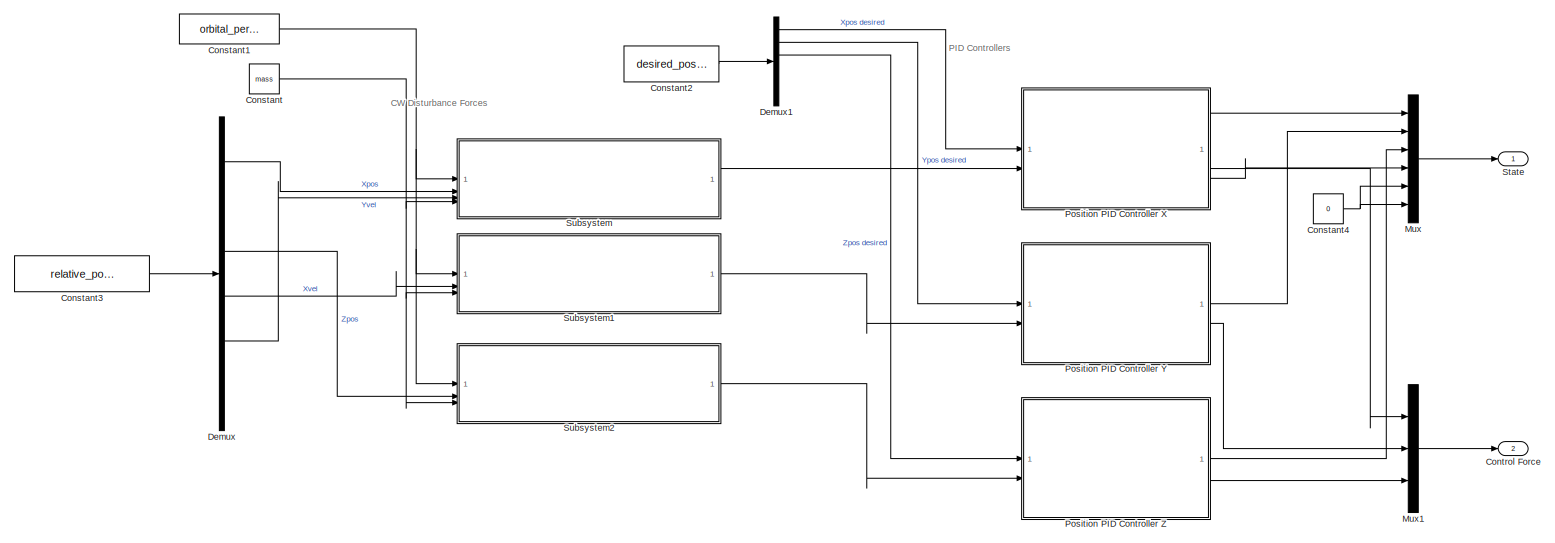
[diagram: root canvas - part 1/1, most of the canvas]
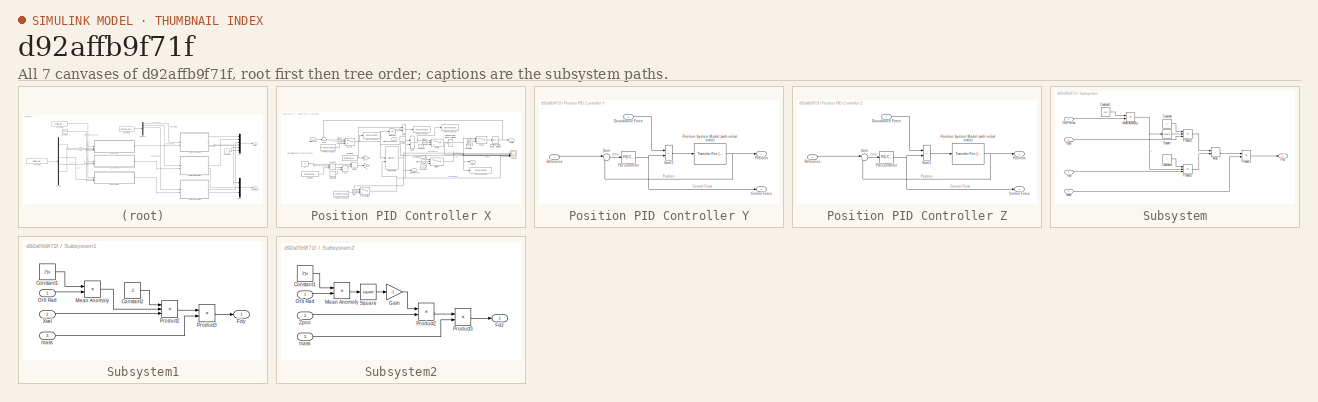
[diagram: thumbnail index - all 7 canvases of the model, root first then tree order]
MODEL slx_d92affb9f71f
KIND model
CONFIG AbsTol = auto
CONFIG EnableMultiTasking = off
CONFIG FixedStep = Tstep
CONFIG MaxStep = auto
CONFIG MinStep = auto
CONFIG RelTol = 1e-3
CONFIG SampleTimeConstraint = Unconstrained
CONFIG SolverName = ode4
CONFIG StartTime = 0.0
CONFIG StopTime = Tfinal
WORKSPACE source: mxarray member
WORKSPACE m: Simulink.Parameter (value not decoded)
BLOCK [Constant] Constant
  Value = mass
BLOCK [Constant] Constant1
  Value = orbital_period
BLOCK [Constant] Constant2
  Value = desired_position
BLOCK [Constant] Constant3
  Value = relative_position
BLOCK [Constant] Constant4
  Value = 0
BLOCK [Outport] Control Force
  Port = 2
  SignalName = Control Force
BLOCK [Demux] Demux
  Outputs = 6
BLOCK [Demux] Demux1
  Outputs = 6
BLOCK [Mux] Mux
  DisplayOption = bar
  Inputs = 6
BLOCK [Mux] Mux1
  DisplayOption = bar
  Inputs = 3
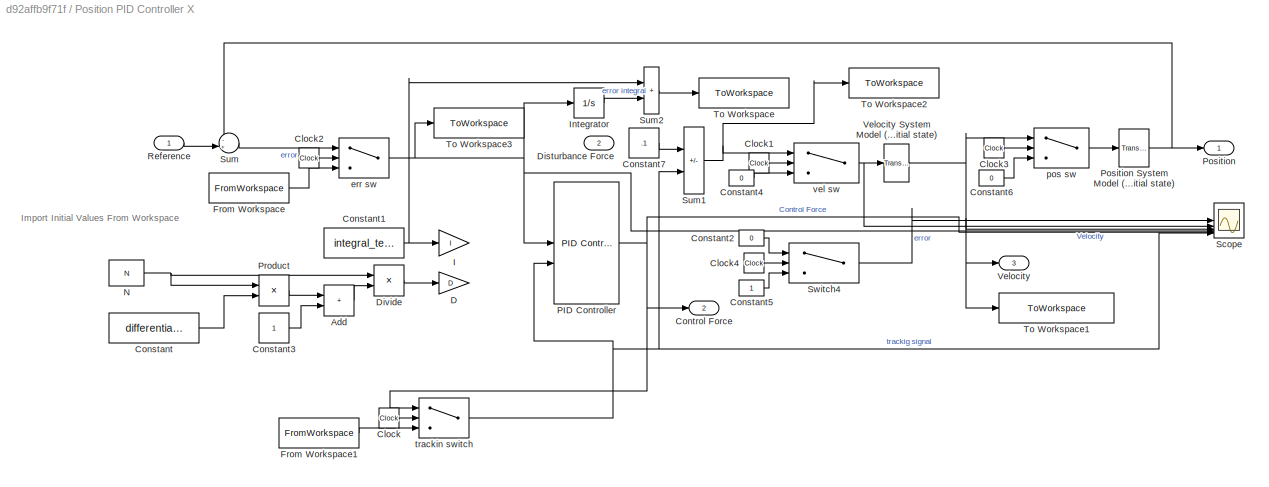
BLOCK [SubSystem] Position PID Controller X
BLOCK [Sum] Position PID Controller X/Add
  IconShape = rectangular
BLOCK [Clock] Position PID Controller X/Clock
BLOCK [Clock] Position PID Controller X/Clock1
BLOCK [Clock] Position PID Controller X/Clock2
BLOCK [Clock] Position PID Controller X/Clock3
BLOCK [Clock] Position PID Controller X/Clock4
BLOCK [Constant] Position PID Controller X/Constant
  Value = differential_term
BLOCK [Constant] Position PID Controller X/Constant1
  Value = integral_term
BLOCK [Constant] Position PID Controller X/Constant2
  Value = 0
BLOCK [Constant] Position PID Controller X/Constant3
BLOCK [Constant] Position PID Controller X/Constant4
  Value = 0
BLOCK [Constant] Position PID Controller X/Constant5
BLOCK [Constant] Position PID Controller X/Constant6
  Value = 0
BLOCK [Constant] Position PID Controller X/Constant7
  Value = .1
BLOCK [Outport] Position PID Controller X/Control Force
  Port = 2
BLOCK [Gain] Position PID Controller X/D
  Gain = D
BLOCK [Inport] Position PID Controller X/Disturbance Force
  Port = 2
BLOCK [Product] Position PID Controller X/Divide
  Inputs = */
BLOCK [FromWorkspace] Position PID Controller X/From Workspace
  VariableName = error_timeseries
BLOCK [FromWorkspace] Position PID Controller X/From Workspace1
  VariableName = plant_input
BLOCK [Gain] Position PID Controller X/I
  Gain = I
BLOCK [Integrator] Position PID Controller X/Integrator
BLOCK [Constant] Position PID Controller X/N
  Value = N
BLOCK [Reference] Position PID Controller X/PID Controller  REF=slpidlib/PID Controller
  SourceBlock = slpidlib/PID Controller
  SourceType = PID 1dof
BLOCK [Outport] Position PID Controller X/Position
BLOCK [Reference] Position PID Controller X/Position System Model (with initial state)  REF=simulink_extras/Additional
Linear/Transfer Fcn
(with initial states)
  SourceBlock = simulink_extras/Additional\nLinear/Transfer Fcn\n(with initial states)
  SourceType = Transfer Function with Initial States
BLOCK [Product] Position PID Controller X/Product
BLOCK [Inport] Position PID Controller X/Reference
BLOCK [Scope] Position PID Controller X/Scope
  Floating = off
  NumInputPorts = 6
  ScopeSpecificationString = Simulink.scopes.TimeScopeBlockCfg('CurrentConfiguration', extmgr.ConfigurationSet(extmgr.Configuration('Core','General UI',true),extmgr.Configuration('Core','Source UI',true),extmgr.Configuration('Sources','WiredSimulink',true),extmgr.Configuration('Visuals','Time Domain',true,'SerializedDisplays',{struct('MinYLimReal','-22.09','MaxYLimReal','12.6788','YLabelReal','','MinYLimMag','0.00000','MaxYLi...<+1566ch>
BLOCK [Sum] Position PID Controller X/Sum
  Inputs = -+|
BLOCK [Sum] Position PID Controller X/Sum1
  IconShape = rectangular
  Inputs = -+
BLOCK [Sum] Position PID Controller X/Sum2
  IconShape = rectangular
BLOCK [Switch] Position PID Controller X/Switch4
  InputSameDT = off
  SaturateOnIntegerOverflow = off
  Threshold = TControlStart
BLOCK [ToWorkspace] Position PID Controller X/To Workspace
  FixptAsFi = on
  MaxDataPoints = inf
  SampleTime = -1
  VariableName = PID_I_term
BLOCK [ToWorkspace] Position PID Controller X/To Workspace1
  FixptAsFi = on
  MaxDataPoints = inf
  SampleTime = -1
  VariableName = PID_D_term
BLOCK [ToWorkspace] Position PID Controller X/To Workspace2
  FixptAsFi = on
  MaxDataPoints = inf
  SampleTime = -1
  SaveFormat = Timeseries
  VariableName = PlantInput
BLOCK [ToWorkspace] Position PID Controller X/To Workspace3
  FixptAsFi = on
  MaxDataPoints = inf
  SampleTime = -1
  SaveFormat = Timeseries
  VariableName = error
BLOCK [Outport] Position PID Controller X/Velocity
  Port = 3
BLOCK [Reference] Position PID Controller X/Velocity System Model (with initial state)  REF=simulink_extras/Additional
Linear/Transfer Fcn
(with initial states)
  NameLocation = top
  SourceBlock = simulink_extras/Additional\nLinear/Transfer Fcn\n(with initial states)
  SourceType = Transfer Function with Initial States
BLOCK [Switch] Position PID Controller X/err sw
  Criteria = u2 > Threshold
  InputSameDT = off
  SaturateOnIntegerOverflow = off
  Threshold = TControlStart
BLOCK [Switch] Position PID Controller X/pos sw
  InputSameDT = off
  SaturateOnIntegerOverflow = off
  Threshold = TControlStart
BLOCK [Switch] Position PID Controller X/trackin switch
  Criteria = u2 > Threshold
  InputSameDT = off
  SaturateOnIntegerOverflow = off
  Threshold = TControlStart
BLOCK [Switch] Position PID Controller X/vel sw
  InputSameDT = off
  SaturateOnIntegerOverflow = off
  Threshold = TControlStart
BLOCK [SubSystem] Position PID Controller Y
BLOCK [Outport] Position PID Controller Y/Control Force
  Port = 2
BLOCK [Inport] Position PID Controller Y/Disturbance Force
  Port = 2
BLOCK [Reference] Position PID Controller Y/PID Controller  REF=slpidlib/PID Controller
  SourceBlock = slpidlib/PID Controller
  SourceType = PID 1dof
BLOCK [Outport] Position PID Controller Y/Position
BLOCK [Reference] Position PID Controller Y/Position System Model (with initial state)  REF=simulink_extras/Additional
Linear/Transfer Fcn
(with initial states)
  SourceBlock = simulink_extras/Additional\nLinear/Transfer Fcn\n(with initial states)
  SourceType = Transfer Function with Initial States
BLOCK [Inport] Position PID Controller Y/Reference
BLOCK [Sum] Position PID Controller Y/Sum
  Inputs = |+-
BLOCK [Sum] Position PID Controller Y/Sum1
  IconShape = rectangular
  Inputs = -+
BLOCK [SubSystem] Position PID Controller Z
BLOCK [Outport] Position PID Controller Z/Control Force
  Port = 2
BLOCK [Inport] Position PID Controller Z/Disturbance Force
  Port = 2
BLOCK [Reference] Position PID Controller Z/PID Controller  REF=slpidlib/PID Controller
  SourceBlock = slpidlib/PID Controller
  SourceType = PID 1dof
BLOCK [Outport] Position PID Controller Z/Position
BLOCK [Reference] Position PID Controller Z/Position System Model (with initial state)  REF=simulink_extras/Additional
Linear/Transfer Fcn
(with initial states)
  SourceBlock = simulink_extras/Additional\nLinear/Transfer Fcn\n(with initial states)
  SourceType = Transfer Function with Initial States
BLOCK [Inport] Position PID Controller Z/Reference
BLOCK [Sum] Position PID Controller Z/Sum
  Inputs = |+-
BLOCK [Sum] Position PID Controller Z/Sum1
  IconShape = rectangular
  Inputs = -+
BLOCK [Outport] State
  SignalName = State
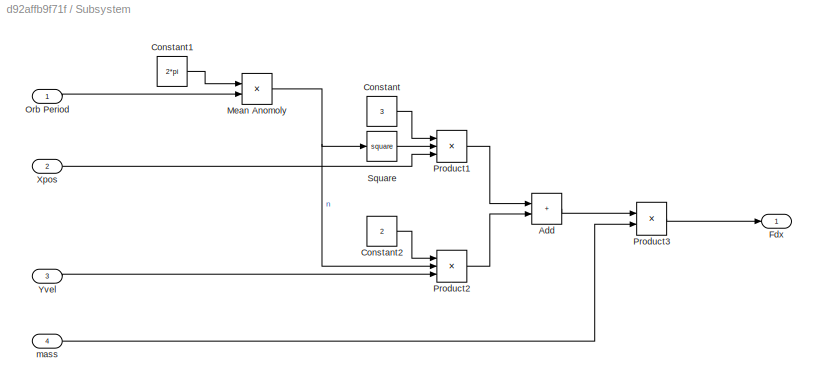
BLOCK [SubSystem] Subsystem
BLOCK [Sum] Subsystem/Add
  IconShape = rectangular
BLOCK [Constant] Subsystem/Constant
  Value = 3
BLOCK [Constant] Subsystem/Constant1
  Value = 2*pi
BLOCK [Constant] Subsystem/Constant2
  Value = 2
BLOCK [Outport] Subsystem/Fdx
BLOCK [Product] Subsystem/Mean Anomoly
  Inputs = */
BLOCK [Inport] Subsystem/Orb Period
BLOCK [Product] Subsystem/Product1
  Inputs = 3
BLOCK [Product] Subsystem/Product2
  Inputs = 3
BLOCK [Product] Subsystem/Product3
BLOCK [Math] Subsystem/Square
  Operator = square
BLOCK [Inport] Subsystem/Xpos
  Port = 2
BLOCK [Inport] Subsystem/Yvel
  Port = 3
BLOCK [Inport] Subsystem/mass
  Port = 4
BLOCK [SubSystem] Subsystem1
BLOCK [Constant] Subsystem1/Constant1
  Value = 2*pi
BLOCK [Constant] Subsystem1/Constant2
  Value = -2
BLOCK [Outport] Subsystem1/Fdy
BLOCK [Product] Subsystem1/Mean Anomoly
  Inputs = */
BLOCK [Inport] Subsystem1/Orb Rad
BLOCK [Product] Subsystem1/Product2
  Inputs = 3
BLOCK [Product] Subsystem1/Product3
BLOCK [Inport] Subsystem1/Xvel
  Port = 2
BLOCK [Inport] Subsystem1/mass
  Port = 3
BLOCK [SubSystem] Subsystem2
BLOCK [Constant] Subsystem2/Constant1
  Value = 2*pi
BLOCK [Outport] Subsystem2/Fdz
BLOCK [Gain] Subsystem2/Gain
  Gain = -1
BLOCK [Product] Subsystem2/Mean Anomoly
  Inputs = */
BLOCK [Inport] Subsystem2/Orb Rad
BLOCK [Product] Subsystem2/Product2
BLOCK [Product] Subsystem2/Product3
BLOCK [Math] Subsystem2/Square
  Operator = square
BLOCK [Inport] Subsystem2/Zpos
  Port = 2
BLOCK [Inport] Subsystem2/mass
  Port = 3
ANNOTATION (root): CW Disturbance Forces
ANNOTATION (root): PID Controllers
ANNOTATION Position PID Controller X: Import Initial Values From Workspace
NET Constant1:1 -> Subsystem1:1, Subsystem2:1, Subsystem:1
LINE Constant2:1 -> Demux1:1
LINE Constant3:1 -> Demux:1
NET Constant4:1 -> Mux:5, Mux:6
NET Constant:1 -> Subsystem1:3, Subsystem2:3, Subsystem:4
LINE Demux1:1 -> Position PID Controller X:1
LINE Demux1:2 -> Position PID Controller Y:1
LINE Demux1:3 -> Position PID Controller Z:1
LINE Demux:1 -> Subsystem:2
LINE Demux:3 -> Subsystem2:2
LINE Demux:4 -> Subsystem1:2
LINE Demux:5 -> Subsystem:3
LINE Mux1:1 -> Control Force:1
LINE Mux:1 -> State:1
LINE Position PID Controller X/Add:1 -> Position PID Controller X/Divide:2
LINE Position PID Controller X/Clock1:1 -> Position PID Controller X/vel sw:2
LINE Position PID Controller X/Clock2:1 -> Position PID Controller X/err sw:2
LINE Position PID Controller X/Clock3:1 -> Position PID Controller X/pos sw:2
LINE Position PID Controller X/Clock4:1 -> Position PID Controller X/Switch4:2
LINE Position PID Controller X/Clock:1 -> Position PID Controller X/trackin switch:2
NET Position PID Controller X/Constant1:1 -> Position PID Controller X/I:1, Position PID Controller X/Sum2:1
LINE Position PID Controller X/Constant2:1 -> Position PID Controller X/Switch4:1
LINE Position PID Controller X/Constant3:1 -> Position PID Controller X/Add:2
LINE Position PID Controller X/Constant4:1 -> Position PID Controller X/vel sw:3
LINE Position PID Controller X/Constant5:1 -> Position PID Controller X/Switch4:3
LINE Position PID Controller X/Constant6:1 -> Position PID Controller X/pos sw:3
LINE Position PID Controller X/Constant7:1 -> Position PID Controller X/Sum1:1
LINE Position PID Controller X/Constant:1 -> Position PID Controller X/Product:2
LINE Position PID Controller X/Divide:1 -> Position PID Controller X/D:1
LINE Position PID Controller X/From Workspace1:1 -> Position PID Controller X/trackin switch:3
LINE Position PID Controller X/From Workspace:1 -> Position PID Controller X/err sw:3
LINE Position PID Controller X/Integrator:1 -> Position PID Controller X/Sum2:2
NET Position PID Controller X/N:1 -> Position PID Controller X/Divide:1, Position PID Controller X/Product:1
NET Position PID Controller X/PID Controller:1 -> Position PID Controller X/Control Force:1, Position PID Controller X/Scope:5, Position PID Controller X/trackin switch:1
NET Position PID Controller X/Position System Model (with initial state):1 -> Position PID Controller X/Position:1, Position PID Controller X/Sum:1
LINE Position PID Controller X/Product:1 -> Position PID Controller X/Add:1
LINE Position PID Controller X/Reference:1 -> Position PID Controller X/Sum:2
NET Position PID Controller X/Sum1:1 -> Position PID Controller X/To Workspace2:1, Position PID Controller X/vel sw:1
LINE Position PID Controller X/Sum2:1 -> Position PID Controller X/To Workspace:1
LINE Position PID Controller X/Sum:1 -> Position PID Controller X/err sw:1
LINE Position PID Controller X/Switch4:1 -> Position PID Controller X/Scope:1
NET Position PID Controller X/Velocity System Model (with initial state):1 -> Position PID Controller X/Scope:3, Position PID Controller X/To Workspace1:1, Position PID Controller X/Velocity:1, Position PID Controller X/pos sw:1
NET Position PID Controller X/err sw:1 -> Position PID Controller X/Integrator:1, Position PID Controller X/PID Controller:1, Position PID Controller X/Scope:4, Position PID Controller X/To Workspace3:1
LINE Position PID Controller X/pos sw:1 -> Position PID Controller X/Position System Model (with initial state):1
NET Position PID Controller X/trackin switch:1 -> Position PID Controller X/PID Controller:2, Position PID Controller X/Scope:6, Position PID Controller X/Sum1:2
NET Position PID Controller X/vel sw:1 -> Position PID Controller X/Scope:2, Position PID Controller X/Velocity System Model (with initial state):1
LINE Position PID Controller X:1 -> Mux:1
LINE Position PID Controller X:2 -> Mux1:1
LINE Position PID Controller X:3 -> Mux:4
LINE Position PID Controller Y/Disturbance Force:1 -> Position PID Controller Y/Sum1:1
NET Position PID Controller Y/PID Controller:1 -> Position PID Controller Y/Control Force:1, Position PID Controller Y/Sum1:2
NET Position PID Controller Y/Position System Model (with initial state):1 -> Position PID Controller Y/Position:1, Position PID Controller Y/Sum:2
LINE Position PID Controller Y/Reference:1 -> Position PID Controller Y/Sum:1
LINE Position PID Controller Y/Sum1:1 -> Position PID Controller Y/Position System Model (with initial state):1
LINE Position PID Controller Y/Sum:1 -> Position PID Controller Y/PID Controller:1
LINE Position PID Controller Y:1 -> Mux:2
LINE Position PID Controller Y:2 -> Mux1:2
LINE Position PID Controller Z/Disturbance Force:1 -> Position PID Controller Z/Sum1:1
NET Position PID Controller Z/PID Controller:1 -> Position PID Controller Z/Control Force:1, Position PID Controller Z/Sum1:2
NET Position PID Controller Z/Position System Model (with initial state):1 -> Position PID Controller Z/Position:1, Position PID Controller Z/Sum:2
LINE Position PID Controller Z/Reference:1 -> Position PID Controller Z/Sum:1
LINE Position PID Controller Z/Sum1:1 -> Position PID Controller Z/Position System Model (with initial state):1
LINE Position PID Controller Z/Sum:1 -> Position PID Controller Z/PID Controller:1
LINE Position PID Controller Z:1 -> Mux:3
LINE Position PID Controller Z:2 -> Mux1:3
LINE Subsystem/Add:1 -> Subsystem/Product3:1
LINE Subsystem/Constant1:1 -> Subsystem/Mean Anomoly:1
LINE Subsystem/Constant2:1 -> Subsystem/Product2:1
LINE Subsystem/Constant:1 -> Subsystem/Product1:1
NET Subsystem/Mean Anomoly:1 -> Subsystem/Product2:2, Subsystem/Square:1
LINE Subsystem/Orb Period:1 -> Subsystem/Mean Anomoly:2
LINE Subsystem/Product1:1 -> Subsystem/Add:1
LINE Subsystem/Product2:1 -> Subsystem/Add:2
LINE Subsystem/Product3:1 -> Subsystem/Fdx:1
LINE Subsystem/Square:1 -> Subsystem/Product1:2
LINE Subsystem/Xpos:1 -> Subsystem/Product1:3
LINE Subsystem/Yvel:1 -> Subsystem/Product2:3
LINE Subsystem/mass:1 -> Subsystem/Product3:2
LINE Subsystem1/Constant1:1 -> Subsystem1/Mean Anomoly:1
LINE Subsystem1/Constant2:1 -> Subsystem1/Product2:1
LINE Subsystem1/Mean Anomoly:1 -> Subsystem1/Product2:2
LINE Subsystem1/Orb Rad:1 -> Subsystem1/Mean Anomoly:2
LINE Subsystem1/Product2:1 -> Subsystem1/Product3:1
LINE Subsystem1/Product3:1 -> Subsystem1/Fdy:1
LINE Subsystem1/Xvel:1 -> Subsystem1/Product2:3
LINE Subsystem1/mass:1 -> Subsystem1/Product3:2
LINE Subsystem1:1 -> Position PID Controller Y:2
LINE Subsystem2/Constant1:1 -> Subsystem2/Mean Anomoly:1
LINE Subsystem2/Gain:1 -> Subsystem2/Product2:1
LINE Subsystem2/Mean Anomoly:1 -> Subsystem2/Square:1
LINE Subsystem2/Orb Rad:1 -> Subsystem2/Mean Anomoly:2
LINE Subsystem2/Product2:1 -> Subsystem2/Product3:1
LINE Subsystem2/Product3:1 -> Subsystem2/Fdz:1
LINE Subsystem2/Square:1 -> Subsystem2/Gain:1
LINE Subsystem2/Zpos:1 -> Subsystem2/Product2:2
LINE Subsystem2/mass:1 -> Subsystem2/Product3:2
LINE Subsystem2:1 -> Position PID Controller Z:2
LINE Subsystem:1 -> Position PID Controller X:2
note: NET lines group one-source signal fan-out (src -> all destinations, sorted); 1:1 wires keep LINE
